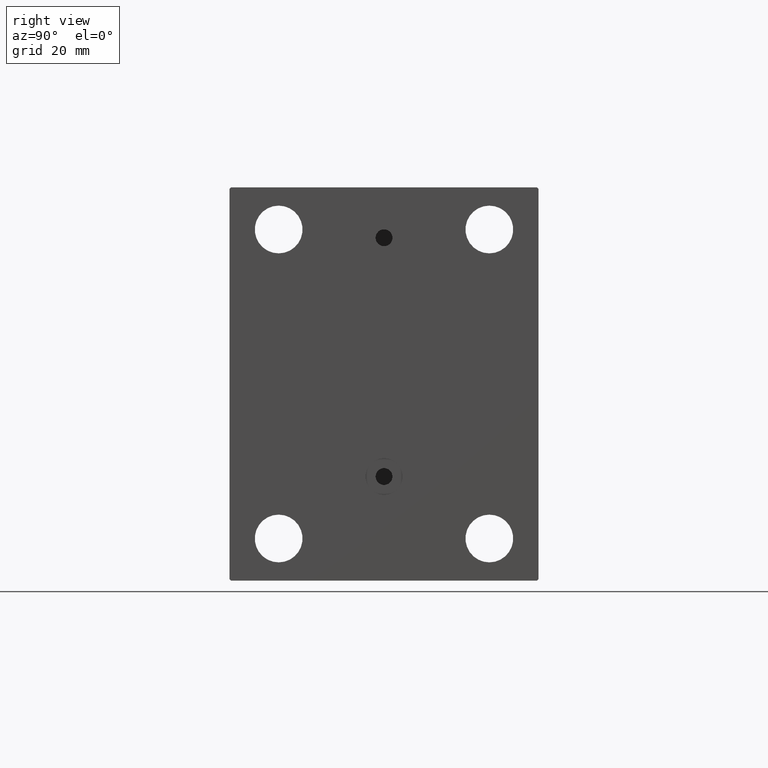
[diagram: clean part render]
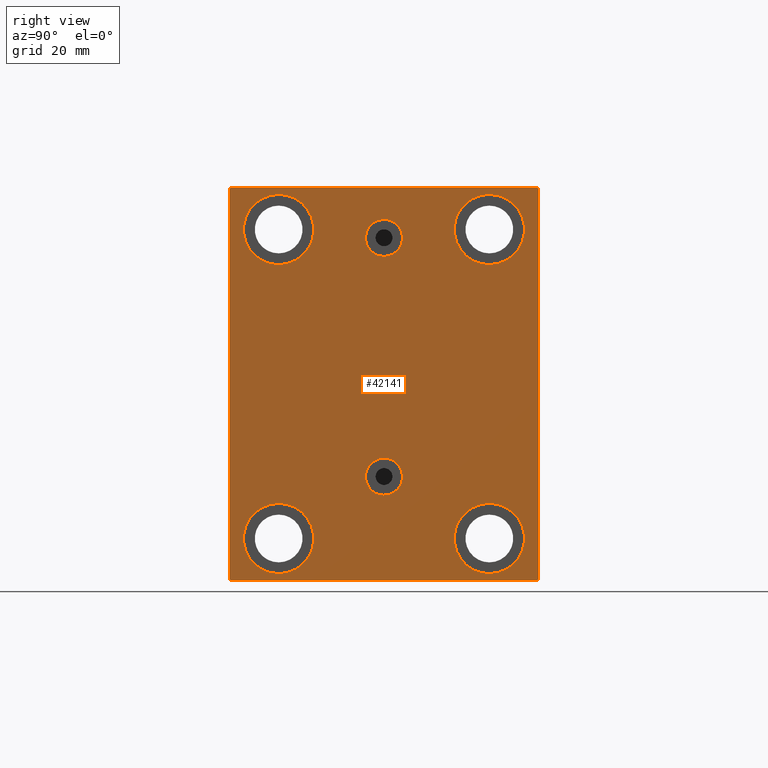
[diagram: same view with one face highlighted and labeled with its STEP entity id]
A machine part, right view. The second image highlights one B-rep face of the part: STEP entity #42141.
In plain terms, the highlighted planar face has unit normal (1, 0, 0).
Its self-contained STEP definition (entity closure, byte-faithful):
#132 = DIRECTION ( 'NONE',  ( 0.000000000000000000, 0.000000000000000000, 1.000000000000000000 ) ) ;
#487 = ORIENTED_EDGE ( 'NONE', *, *, #43840, .F. ) ;
#642 = VERTEX_POINT ( 'NONE', #27769 ) ;
#1124 = VERTEX_POINT ( 'NONE', #23478 ) ;
#1309 = AXIS2_PLACEMENT_3D ( 'NONE', #17107, #45448, #41556 ) ;
#1390 = ORIENTED_EDGE ( 'NONE', *, *, #42431, .F. ) ;
#1491 = DIRECTION ( 'NONE',  ( -1.000000000000000000, -0.000000000000000000, -0.000000000000000000 ) ) ;
#1538 = AXIS2_PLACEMENT_3D ( 'NONE', #18161, #28312, #32010 ) ;
#1831 = ORIENTED_EDGE ( 'NONE', *, *, #22302, .T. ) ;
#1895 = ORIENTED_EDGE ( 'NONE', *, *, #14850, .F. ) ;
#2367 = LINE ( 'NONE', #19621, #3692 ) ;
#2925 = CARTESIAN_POINT ( 'NONE',  ( 118.0000000000000000, 0.000000000000000000, 0.000000000000000000 ) ) ;
#2936 = VECTOR ( 'NONE', #19615, 1000.000000000000114 ) ;
#3037 = CIRCLE ( 'NONE', #33897, 12.49999999999999645 ) ;
#3125 = VERTEX_POINT ( 'NONE', #35313 ) ;
#3355 = VERTEX_POINT ( 'NONE', #4451 ) ;
#3607 = FACE_BOUND ( 'NONE', #29165, .T. ) ;
#3692 = VECTOR ( 'NONE', #23530, 1000.000000000000000 ) ;
#4028 = DIRECTION ( 'NONE',  ( 0.000000000000000000, 0.000000000000000000, -1.000000000000000000 ) ) ;
#4041 = DIRECTION ( 'NONE',  ( -1.000000000000000000, -0.000000000000000000, -0.000000000000000000 ) ) ;
#4115 = EDGE_CURVE ( 'NONE', #32484, #1124, #2367, .T. ) ;
#4289 = LINE ( 'NONE', #32381, #6204 ) ;
#4425 = VERTEX_POINT ( 'NONE', #44001 ) ;
#4451 = CARTESIAN_POINT ( 'NONE',  ( 118.0000000000000000, -37.50000000000002132, -67.49999999999998579 ) ) ;
#4598 = ORIENTED_EDGE ( 'NONE', *, *, #9391, .T. ) ;
#4756 = DIRECTION ( 'NONE',  ( -1.000000000000000000, -0.000000000000000000, -0.000000000000000000 ) ) ;
#5033 = DIRECTION ( 'NONE',  ( 0.000000000000000000, -0.7071067811865474617, -0.7071067811865474617 ) ) ;
#5314 = EDGE_CURVE ( 'NONE', #20061, #4425, #34617, .T. ) ;
#5484 = ORIENTED_EDGE ( 'NONE', *, *, #13458, .T. ) ;
#5575 = EDGE_CURVE ( 'NONE', #24764, #18763, #9612, .T. ) ;
#5580 = LINE ( 'NONE', #40825, #2936 ) ;
#5991 = CARTESIAN_POINT ( 'NONE',  ( 118.0000000000000000, -37.50000000000002132, -54.99999999999999289 ) ) ;
#6075 = AXIS2_PLACEMENT_3D ( 'NONE', #37452, #9334, #30319 ) ;
#6204 = VECTOR ( 'NONE', #39304, 1000.000000000000000 ) ;
#6340 = CARTESIAN_POINT ( 'NONE',  ( 118.0000000000000000, -37.50000000000000711, 55.00000000000000711 ) ) ;
#7185 = VERTEX_POINT ( 'NONE', #40869 ) ;
#7287 = EDGE_LOOP ( 'NONE', ( #5484, #18182 ) ) ;
#8903 = AXIS2_PLACEMENT_3D ( 'NONE', #39500, #1491, #39954 ) ;
#8911 = VERTEX_POINT ( 'NONE', #31140 ) ;
#8996 = CARTESIAN_POINT ( 'NONE',  ( 118.0000000000000000, -7.970046508789298136E-15, 58.58000000000000540 ) ) ;
#9237 = DIRECTION ( 'NONE',  ( 1.000000000000000000, 0.000000000000000000, -0.000000000000000000 ) ) ;
#9334 = DIRECTION ( 'NONE',  ( 1.000000000000000000, 0.000000000000000000, 0.000000000000000000 ) ) ;
#9391 = EDGE_CURVE ( 'NONE', #7185, #39327, #20880, .T. ) ;
#9456 = AXIS2_PLACEMENT_3D ( 'NONE', #23305, #12921, #26762 ) ;
#9480 = ORIENTED_EDGE ( 'NONE', *, *, #39484, .T. ) ;
#9487 = ORIENTED_EDGE ( 'NONE', *, *, #18574, .F. ) ;
#9585 = FACE_BOUND ( 'NONE', #26178, .T. ) ;
#9612 = CIRCLE ( 'NONE', #8903, 12.49999999999999645 ) ;
#9843 = VERTEX_POINT ( 'NONE', #10797 ) ;
#10082 = CIRCLE ( 'NONE', #1309, 12.49999999999999645 ) ;
#10260 = FACE_BOUND ( 'NONE', #40451, .T. ) ;
#10797 = CARTESIAN_POINT ( 'NONE',  ( 118.0000000000000000, 4.041334437186266200E-15, -39.58000000000000540 ) ) ;
#11017 = ORIENTED_EDGE ( 'NONE', *, *, #30523, .T. ) ;
#11443 = DIRECTION ( 'NONE',  ( 0.000000000000000000, 0.000000000000000000, 1.000000000000000000 ) ) ;
#11959 = CARTESIAN_POINT ( 'NONE',  ( 118.0000000000000000, 55.00000000000002132, -70.00000000000000000 ) ) ;
#12630 = ORIENTED_EDGE ( 'NONE', *, *, #30909, .T. ) ;
#12775 = CARTESIAN_POINT ( 'NONE',  ( 118.0000000000000000, -62.25000000000081002, -62.24999999999908340 ) ) ;
#12921 = DIRECTION ( 'NONE',  ( -1.000000000000000000, -0.000000000000000000, -0.000000000000000000 ) ) ;
#12924 = AXIS2_PLACEMENT_3D ( 'NONE', #42800, #18124, #11443 ) ;
#13040 = PLANE ( 'NONE',  #20574 ) ;
#13458 = EDGE_CURVE ( 'NONE', #3355, #3125, #36198, .T. ) ;
#13945 = FACE_BOUND ( 'NONE', #31092, .T. ) ;
#13989 = AXIS2_PLACEMENT_3D ( 'NONE', #6340, #44589, #19479 ) ;
#14850 = EDGE_CURVE ( 'NONE', #17881, #24380, #32583, .T. ) ;
#15437 = CARTESIAN_POINT ( 'NONE',  ( 118.0000000000000000, -8.775864102628257178E-15, 45.42000000000000171 ) ) ;
#15849 = CIRCLE ( 'NONE', #12924, 12.49999999999999645 ) ;
#16004 = VERTEX_POINT ( 'NONE', #35666 ) ;
#16163 = AXIS2_PLACEMENT_3D ( 'NONE', #25707, #4756, #22704 ) ;
#17107 = CARTESIAN_POINT ( 'NONE',  ( 118.0000000000000000, 37.50000000000000711, 55.00000000000000711 ) ) ;
#17127 = ORIENTED_EDGE ( 'NONE', *, *, #5314, .T. ) ;
#17628 = FACE_BOUND ( 'NONE', #24315, .T. ) ;
#17881 = VERTEX_POINT ( 'NONE', #8996 ) ;
#18124 = DIRECTION ( 'NONE',  ( -1.000000000000000000, -0.000000000000000000, -0.000000000000000000 ) ) ;
#18161 = CARTESIAN_POINT ( 'NONE',  ( 118.0000000000000000, 4.041334437186266200E-15, -33.00000000000000000 ) ) ;
#18182 = ORIENTED_EDGE ( 'NONE', *, *, #45186, .T. ) ;
#18574 = EDGE_CURVE ( 'NONE', #9843, #16004, #25305, .T. ) ;
#18755 = ORIENTED_EDGE ( 'NONE', *, *, #20317, .T. ) ;
#18763 = VERTEX_POINT ( 'NONE', #38716 ) ;
#19479 = DIRECTION ( 'NONE',  ( 0.000000000000000000, 0.000000000000000000, 1.000000000000000000 ) ) ;
#19615 = DIRECTION ( 'NONE',  ( -0.000000000000000000, 0.7071067811865474617, 0.7071067811865474617 ) ) ;
#19621 = CARTESIAN_POINT ( 'NONE',  ( 118.0000000000000000, -55.00000000000000711, -70.00000000000002842 ) ) ;
#19954 = CARTESIAN_POINT ( 'NONE',  ( 118.0000000000000000, 37.50000000000000711, 42.50000000000000711 ) ) ;
#20061 = VERTEX_POINT ( 'NONE', #25514 ) ;
#20317 = EDGE_CURVE ( 'NONE', #39327, #22596, #4289, .T. ) ;
#20343 = ORIENTED_EDGE ( 'NONE', *, *, #32025, .T. ) ;
#20354 = DIRECTION ( 'NONE',  ( 1.000000000000000000, 0.000000000000000000, 0.000000000000000000 ) ) ;
#20395 = VERTEX_POINT ( 'NONE', #39758 ) ;
#20410 = DIRECTION ( 'NONE',  ( 1.000000000000000000, 0.000000000000000000, 0.000000000000000000 ) ) ;
#20426 = CARTESIAN_POINT ( 'NONE',  ( 118.0000000000000000, 62.24999999999999289, 62.24999999999999289 ) ) ;
#20574 = AXIS2_PLACEMENT_3D ( 'NONE', #2925, #20410, #45284 ) ;
#20624 = EDGE_LOOP ( 'NONE', ( #18755, #11017, #12630, #38761, #23114, #31372, #1831, #4598 ) ) ;
#20880 = LINE ( 'NONE', #20426, #39935 ) ;
#21620 = AXIS2_PLACEMENT_3D ( 'NONE', #23519, #9237, #23077 ) ;
#21831 = VECTOR ( 'NONE', #4028, 1000.000000000000000 ) ;
#22030 = AXIS2_PLACEMENT_3D ( 'NONE', #34410, #20354, #24038 ) ;
#22302 = EDGE_CURVE ( 'NONE', #8911, #7185, #43536, .T. ) ;
#22596 = VERTEX_POINT ( 'NONE', #29189 ) ;
#22704 = DIRECTION ( 'NONE',  ( 0.000000000000000000, 0.000000000000000000, 1.000000000000000000 ) ) ;
#23077 = DIRECTION ( 'NONE',  ( 0.000000000000000000, 0.000000000000000000, 1.000000000000000000 ) ) ;
#23114 = ORIENTED_EDGE ( 'NONE', *, *, #4115, .T. ) ;
#23305 = CARTESIAN_POINT ( 'NONE',  ( 118.0000000000000000, 37.49999999999997868, -54.99999999999999289 ) ) ;
#23395 = VERTEX_POINT ( 'NONE', #41447 ) ;
#23478 = CARTESIAN_POINT ( 'NONE',  ( 118.0000000000000000, 54.50000000000004974, -70.00000000000000000 ) ) ;
#23519 = CARTESIAN_POINT ( 'NONE',  ( 118.0000000000000000, 4.041334437186266200E-15, -33.00000000000000000 ) ) ;
#23530 = DIRECTION ( 'NONE',  ( 0.000000000000000000, 1.000000000000000000, 2.523234146875355012E-16 ) ) ;
#23537 = CIRCLE ( 'NONE', #16163, 12.49999999999999645 ) ;
#24038 = DIRECTION ( 'NONE',  ( 0.000000000000000000, 0.000000000000000000, -1.000000000000000000 ) ) ;
#24067 = VECTOR ( 'NONE', #5033, 1000.000000000000114 ) ;
#24093 = FACE_BOUND ( 'NONE', #7287, .T. ) ;
#24315 = EDGE_LOOP ( 'NONE', ( #9487, #487 ) ) ;
#24380 = VERTEX_POINT ( 'NONE', #15437 ) ;
#24565 = DIRECTION ( 'NONE',  ( -0.000000000000000000, -0.7071067811865474617, 0.7071067811865474617 ) ) ;
#24764 = VERTEX_POINT ( 'NONE', #30520 ) ;
#25305 = CIRCLE ( 'NONE', #21620, 6.580000000000002736 ) ;
#25426 = LINE ( 'NONE', #32344, #21831 ) ;
#25514 = CARTESIAN_POINT ( 'NONE',  ( 118.0000000000000000, -37.50000000000000711, 42.50000000000000711 ) ) ;
#25707 = CARTESIAN_POINT ( 'NONE',  ( 118.0000000000000000, 37.50000000000000711, 55.00000000000000711 ) ) ;
#26017 = DIRECTION ( 'NONE',  ( 0.000000000000000000, -1.982541115402065110E-16, 1.000000000000000000 ) ) ;
#26127 = VECTOR ( 'NONE', #26017, 1000.000000000000000 ) ;
#26178 = EDGE_LOOP ( 'NONE', ( #17127, #34447 ) ) ;
#26762 = DIRECTION ( 'NONE',  ( 0.000000000000000000, 0.000000000000000000, 1.000000000000000000 ) ) ;
#26770 = EDGE_CURVE ( 'NONE', #4425, #20061, #15849, .T. ) ;
#26918 = ORIENTED_EDGE ( 'NONE', *, *, #5575, .T. ) ;
#27398 = DIRECTION ( 'NONE',  ( 0.000000000000000000, 0.000000000000000000, 1.000000000000000000 ) ) ;
#27769 = CARTESIAN_POINT ( 'NONE',  ( 118.0000000000000000, 37.50000000000000711, 67.50000000000000000 ) ) ;
#27840 = CIRCLE ( 'NONE', #9456, 12.49999999999999645 ) ;
#28312 = DIRECTION ( 'NONE',  ( 1.000000000000000000, 0.000000000000000000, -0.000000000000000000 ) ) ;
#29165 = EDGE_LOOP ( 'NONE', ( #20343, #44205 ) ) ;
#29189 = CARTESIAN_POINT ( 'NONE',  ( 118.0000000000000000, -54.50000000000000711, 69.99999999999998579 ) ) ;
#30191 = CIRCLE ( 'NONE', #1538, 6.580000000000002736 ) ;
#30319 = DIRECTION ( 'NONE',  ( 0.000000000000000000, 0.000000000000000000, -1.000000000000000000 ) ) ;
#30520 = CARTESIAN_POINT ( 'NONE',  ( 118.0000000000000000, 37.49999999999997868, -42.49999999999999289 ) ) ;
#30523 = EDGE_CURVE ( 'NONE', #22596, #23395, #34037, .T. ) ;
#30580 = CARTESIAN_POINT ( 'NONE',  ( 118.0000000000000000, -62.25000000000000000, 62.25000000000000000 ) ) ;
#30909 = EDGE_CURVE ( 'NONE', #23395, #20395, #25426, .T. ) ;
#31092 = EDGE_LOOP ( 'NONE', ( #9480, #26918 ) ) ;
#31140 = CARTESIAN_POINT ( 'NONE',  ( 118.0000000000000000, 55.00000000000002132, -69.50000000000002842 ) ) ;
#31372 = ORIENTED_EDGE ( 'NONE', *, *, #41972, .T. ) ;
#31680 = CARTESIAN_POINT ( 'NONE',  ( 118.0000000000000000, -37.50000000000002132, -54.99999999999999289 ) ) ;
#32010 = DIRECTION ( 'NONE',  ( 0.000000000000000000, 0.000000000000000000, 1.000000000000000000 ) ) ;
#32025 = EDGE_CURVE ( 'NONE', #41312, #642, #10082, .T. ) ;
#32344 = CARTESIAN_POINT ( 'NONE',  ( 118.0000000000000000, -55.00000000000000711, 69.99999999999998579 ) ) ;
#32381 = CARTESIAN_POINT ( 'NONE',  ( 118.0000000000000000, 54.99999999999999289, 70.00000000000000000 ) ) ;
#32484 = VERTEX_POINT ( 'NONE', #43553 ) ;
#32583 = CIRCLE ( 'NONE', #6075, 6.580000000000002736 ) ;
#33897 = AXIS2_PLACEMENT_3D ( 'NONE', #31680, #4041, #132 ) ;
#34037 = LINE ( 'NONE', #30580, #24067 ) ;
#34154 = EDGE_CURVE ( 'NONE', #20395, #32484, #40899, .T. ) ;
#34196 = DIRECTION ( 'NONE',  ( -0.000000000000000000, 0.7071067811865376918, -0.7071067811865573427 ) ) ;
#34410 = CARTESIAN_POINT ( 'NONE',  ( 118.0000000000000000, -8.775864102628257178E-15, 52.00000000000000711 ) ) ;
#34447 = ORIENTED_EDGE ( 'NONE', *, *, #26770, .T. ) ;
#34462 = CARTESIAN_POINT ( 'NONE',  ( 118.0000000000000000, 54.49999999999999289, 70.00000000000000000 ) ) ;
#34617 = CIRCLE ( 'NONE', #13989, 12.49999999999999645 ) ;
#35313 = CARTESIAN_POINT ( 'NONE',  ( 118.0000000000000000, -37.50000000000002132, -42.49999999999999289 ) ) ;
#35666 = CARTESIAN_POINT ( 'NONE',  ( 118.0000000000000000, 4.847152031025224453E-15, -26.41999999999999815 ) ) ;
#36198 = CIRCLE ( 'NONE', #43578, 12.49999999999999645 ) ;
#37452 = CARTESIAN_POINT ( 'NONE',  ( 118.0000000000000000, -8.775864102628257178E-15, 52.00000000000000711 ) ) ;
#37932 = FACE_OUTER_BOUND ( 'NONE', #20624, .T. ) ;
#38716 = CARTESIAN_POINT ( 'NONE',  ( 118.0000000000000000, 37.49999999999997868, -67.49999999999998579 ) ) ;
#38761 = ORIENTED_EDGE ( 'NONE', *, *, #34154, .T. ) ;
#39304 = DIRECTION ( 'NONE',  ( 0.000000000000000000, -1.000000000000000000, -1.261617073437677999E-16 ) ) ;
#39327 = VERTEX_POINT ( 'NONE', #34462 ) ;
#39484 = EDGE_CURVE ( 'NONE', #18763, #24764, #27840, .T. ) ;
#39500 = CARTESIAN_POINT ( 'NONE',  ( 118.0000000000000000, 37.49999999999997868, -54.99999999999999289 ) ) ;
#39758 = CARTESIAN_POINT ( 'NONE',  ( 118.0000000000000000, -55.00000000000000711, -69.50000000000007105 ) ) ;
#39935 = VECTOR ( 'NONE', #24565, 1000.000000000000114 ) ;
#39954 = DIRECTION ( 'NONE',  ( 0.000000000000000000, 0.000000000000000000, 1.000000000000000000 ) ) ;
#40451 = EDGE_LOOP ( 'NONE', ( #1390, #1895 ) ) ;
#40458 = CIRCLE ( 'NONE', #22030, 6.580000000000002736 ) ;
#40825 = CARTESIAN_POINT ( 'NONE',  ( 118.0000000000000000, 62.25000000000002842, -62.25000000000002842 ) ) ;
#40869 = CARTESIAN_POINT ( 'NONE',  ( 118.0000000000000000, 54.99999999999999289, 69.50000000000000000 ) ) ;
#40899 = LINE ( 'NONE', #12775, #41769 ) ;
#41312 = VERTEX_POINT ( 'NONE', #19954 ) ;
#41447 = CARTESIAN_POINT ( 'NONE',  ( 118.0000000000000000, -55.00000000000000711, 69.49999999999998579 ) ) ;
#41556 = DIRECTION ( 'NONE',  ( 0.000000000000000000, 0.000000000000000000, 1.000000000000000000 ) ) ;
#41769 = VECTOR ( 'NONE', #34196, 1000.000000000000114 ) ;
#41972 = EDGE_CURVE ( 'NONE', #1124, #8911, #5580, .T. ) ;
#42141 = ADVANCED_FACE ( 'NONE', ( #10260, #17628, #13945, #9585, #3607, #24093, #37932 ), #13040, .T. ) ;
#42431 = EDGE_CURVE ( 'NONE', #24380, #17881, #40458, .T. ) ;
#42800 = CARTESIAN_POINT ( 'NONE',  ( 118.0000000000000000, -37.50000000000000711, 55.00000000000000711 ) ) ;
#43260 = EDGE_CURVE ( 'NONE', #642, #41312, #23537, .T. ) ;
#43536 = LINE ( 'NONE', #11959, #26127 ) ;
#43553 = CARTESIAN_POINT ( 'NONE',  ( 118.0000000000000000, -54.50000000000006395, -70.00000000000002842 ) ) ;
#43578 = AXIS2_PLACEMENT_3D ( 'NONE', #5991, #44686, #27398 ) ;
#43840 = EDGE_CURVE ( 'NONE', #16004, #9843, #30191, .T. ) ;
#44001 = CARTESIAN_POINT ( 'NONE',  ( 118.0000000000000000, -37.50000000000000711, 67.50000000000000000 ) ) ;
#44205 = ORIENTED_EDGE ( 'NONE', *, *, #43260, .T. ) ;
#44589 = DIRECTION ( 'NONE',  ( -1.000000000000000000, -0.000000000000000000, -0.000000000000000000 ) ) ;
#44686 = DIRECTION ( 'NONE',  ( -1.000000000000000000, -0.000000000000000000, -0.000000000000000000 ) ) ;
#45186 = EDGE_CURVE ( 'NONE', #3125, #3355, #3037, .T. ) ;
#45284 = DIRECTION ( 'NONE',  ( 0.000000000000000000, 0.000000000000000000, -1.000000000000000000 ) ) ;
#45448 = DIRECTION ( 'NONE',  ( -1.000000000000000000, -0.000000000000000000, -0.000000000000000000 ) ) ;